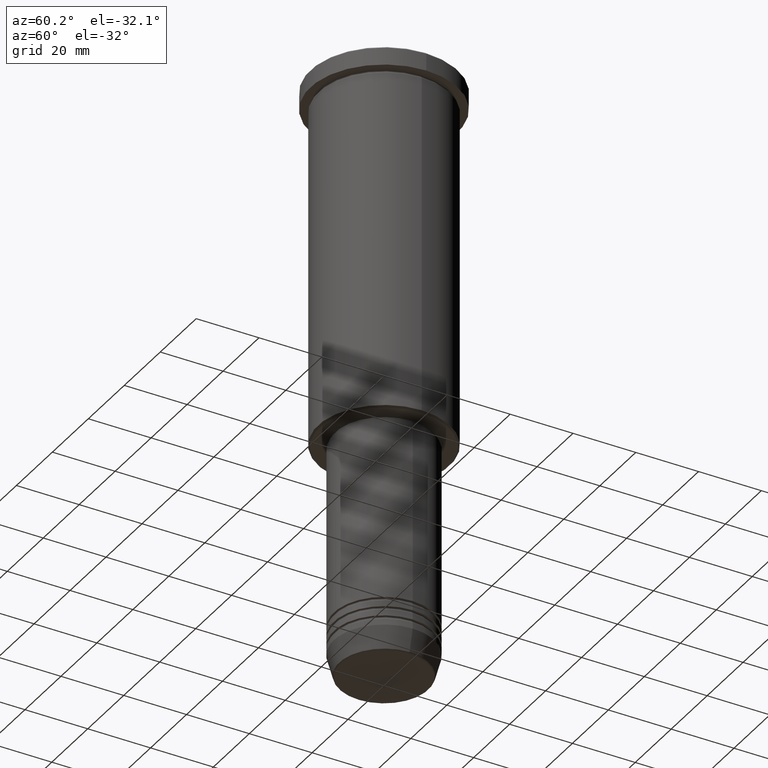
[diagram: clean part render]
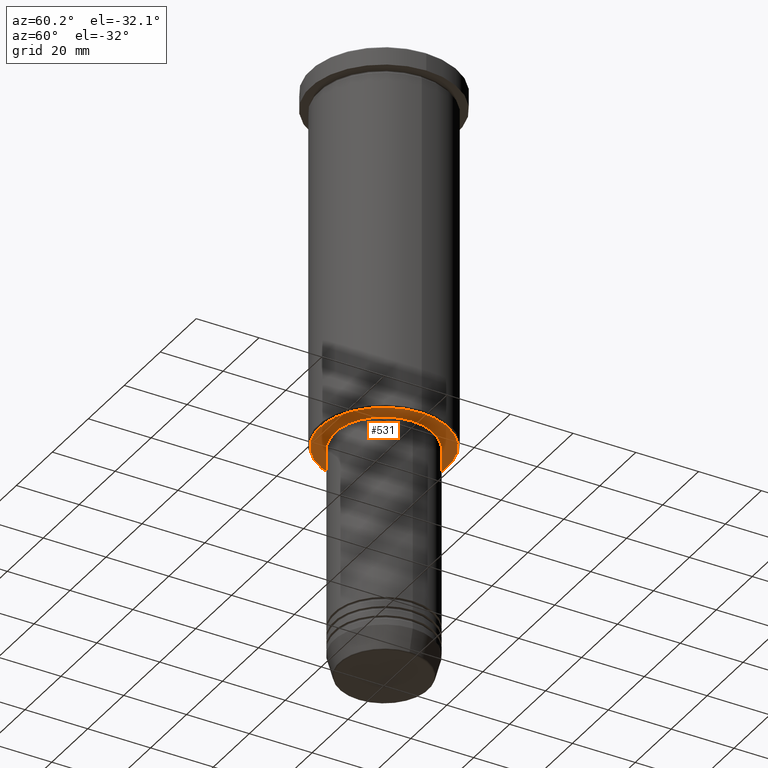
[diagram: same view with one face highlighted and labeled with its STEP entity id]
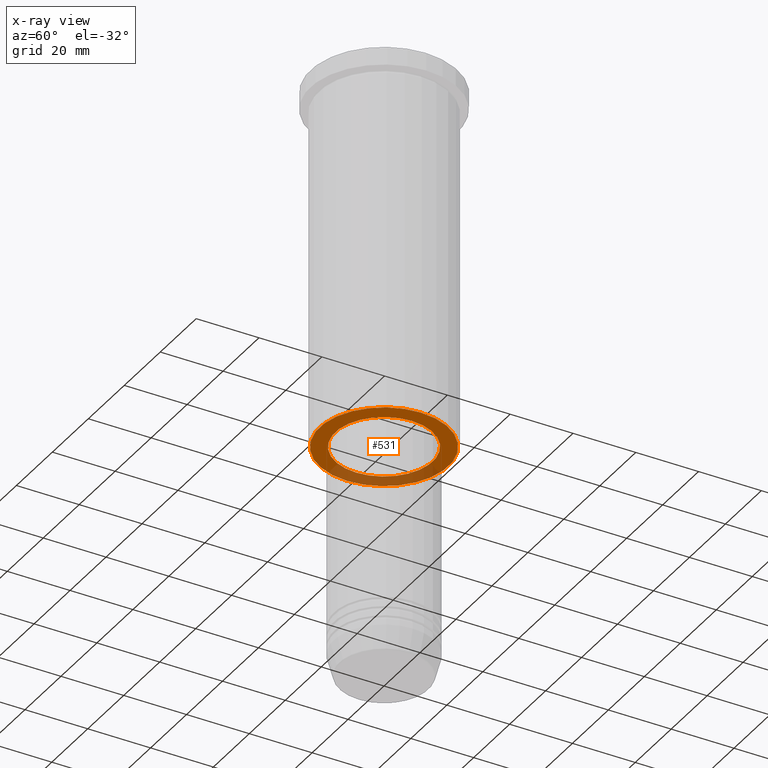
[diagram: x-ray of the same camera — body ghosted, the highlighted face saturated]
A machine part, auxiliary view. The second image highlights one B-rep face of the part: STEP entity #531.
The next image is the same camera in x-ray: the body ghosted, the highlighted face saturated — about 29% of this face is hidden behind the body in this view.
In plain terms, the highlighted planar face has unit normal (0, 0, -1).
Its self-contained STEP definition (entity closure, byte-faithful):
#9 = DIRECTION ( 'NONE',  ( -0.000000000000000000, -0.000000000000000000, 1.000000000000000000 ) ) ;
#17 = EDGE_CURVE ( 'NONE', #668, #172, #115, .T. ) ;
#33 = PLANE ( 'NONE',  #976 ) ;
#88 = DIRECTION ( 'NONE',  ( 1.000000000000000000, 0.000000000000000000, 0.000000000000000000 ) ) ;
#115 = CIRCLE ( 'NONE', #233, 20.49999999999998934 ) ;
#145 = CARTESIAN_POINT ( 'NONE',  ( 20.49999999999998934, 0.000000000000000000, -116.0000000000000142 ) ) ;
#154 = EDGE_CURVE ( 'NONE', #260, #1083, #687, .T. ) ;
#172 = VERTEX_POINT ( 'NONE', #145 ) ;
#233 = AXIS2_PLACEMENT_3D ( 'NONE', #767, #935, #386 ) ;
#251 = AXIS2_PLACEMENT_3D ( 'NONE', #961, #694, #600 ) ;
#260 = VERTEX_POINT ( 'NONE', #986 ) ;
#266 = EDGE_CURVE ( 'NONE', #172, #668, #424, .T. ) ;
#277 = CARTESIAN_POINT ( 'NONE',  ( -20.49999999999998934, 2.541142108230757480E-15, -116.0000000000000142 ) ) ;
#294 = FACE_BOUND ( 'NONE', #477, .T. ) ;
#386 = DIRECTION ( 'NONE',  ( -1.000000000000000000, 0.000000000000000000, 0.000000000000000000 ) ) ;
#399 = CARTESIAN_POINT ( 'NONE',  ( 0.000000000000000000, 21.00000000000000000, -116.0000000000000142 ) ) ;
#424 = CIRCLE ( 'NONE', #442, 20.49999999999998934 ) ;
#435 = ORIENTED_EDGE ( 'NONE', *, *, #602, .T. ) ;
#442 = AXIS2_PLACEMENT_3D ( 'NONE', #1180, #1090, #535 ) ;
#477 = EDGE_LOOP ( 'NONE', ( #435, #975 ) ) ;
#482 = CIRCLE ( 'NONE', #1077, 15.50000000000000000 ) ;
#531 = ADVANCED_FACE ( 'NONE', ( #1048, #294 ), #33, .T. ) ;
#535 = DIRECTION ( 'NONE',  ( -1.000000000000000000, 0.000000000000000000, 0.000000000000000000 ) ) ;
#543 = CARTESIAN_POINT ( 'NONE',  ( 0.000000000000000000, 0.000000000000000000, -116.0000000000000142 ) ) ;
#561 = ORIENTED_EDGE ( 'NONE', *, *, #17, .T. ) ;
#600 = DIRECTION ( 'NONE',  ( 1.000000000000000000, 0.000000000000000000, 0.000000000000000000 ) ) ;
#602 = EDGE_CURVE ( 'NONE', #1083, #260, #482, .T. ) ;
#668 = VERTEX_POINT ( 'NONE', #277 ) ;
#687 = CIRCLE ( 'NONE', #251, 15.50000000000000000 ) ;
#694 = DIRECTION ( 'NONE',  ( -0.000000000000000000, -0.000000000000000000, 1.000000000000000000 ) ) ;
#765 = DIRECTION ( 'NONE',  ( 0.000000000000000000, 0.000000000000000000, -1.000000000000000000 ) ) ;
#767 = CARTESIAN_POINT ( 'NONE',  ( 0.000000000000000000, 0.000000000000000000, -116.0000000000000142 ) ) ;
#854 = EDGE_LOOP ( 'NONE', ( #981, #561 ) ) ;
#935 = DIRECTION ( 'NONE',  ( 0.000000000000000000, 0.000000000000000000, -1.000000000000000000 ) ) ;
#951 = DIRECTION ( 'NONE',  ( -1.000000000000000000, 0.000000000000000000, -0.000000000000000000 ) ) ;
#961 = CARTESIAN_POINT ( 'NONE',  ( 0.000000000000000000, 0.000000000000000000, -116.0000000000000142 ) ) ;
#975 = ORIENTED_EDGE ( 'NONE', *, *, #154, .T. ) ;
#976 = AXIS2_PLACEMENT_3D ( 'NONE', #399, #765, #951 ) ;
#981 = ORIENTED_EDGE ( 'NONE', *, *, #266, .T. ) ;
#986 = CARTESIAN_POINT ( 'NONE',  ( -15.50000000000000000, 1.898202538678397557E-15, -116.0000000000000142 ) ) ;
#1040 = CARTESIAN_POINT ( 'NONE',  ( 15.50000000000000000, 0.000000000000000000, -116.0000000000000142 ) ) ;
#1048 = FACE_OUTER_BOUND ( 'NONE', #854, .T. ) ;
#1077 = AXIS2_PLACEMENT_3D ( 'NONE', #543, #9, #88 ) ;
#1083 = VERTEX_POINT ( 'NONE', #1040 ) ;
#1090 = DIRECTION ( 'NONE',  ( 0.000000000000000000, 0.000000000000000000, -1.000000000000000000 ) ) ;
#1180 = CARTESIAN_POINT ( 'NONE',  ( 0.000000000000000000, 0.000000000000000000, -116.0000000000000142 ) ) ;